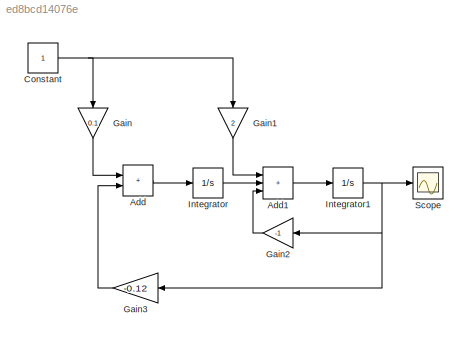
MODEL slx_ed8bcd14076e
KIND model
CONFIG AbsTol = auto
CONFIG EnableMultiTasking = off
CONFIG FixedStep = auto
CONFIG MaxStep = auto
CONFIG MinStep = auto
CONFIG RelTol = 1e-3
CONFIG SampleTimeConstraint = Unconstrained
CONFIG SolverName = VariableStepAuto
CONFIG StartTime = 0.0
CONFIG StopTime = 60
BLOCK [Sum] Add
  IconShape = rectangular
BLOCK [Sum] Add1
  IconShape = rectangular
  Inputs = +++
BLOCK [Constant] Constant
BLOCK [Gain] Gain
  Gain = 0.1
  NameLocation = left
BLOCK [Gain] Gain1
  Gain = 2
  NameLocation = left
BLOCK [Gain] Gain2
  Gain = -1
BLOCK [Gain] Gain3
  Gain = -0.12
BLOCK [Integrator] Integrator
BLOCK [Integrator] Integrator1
BLOCK [Scope] Scope
  Floating = off
  NumInputPorts = 1
  ScopeSpecificationString = Simulink.scopes.TimeScopeBlockCfg('CurrentConfiguration', extmgr.ConfigurationSet(extmgr.Configuration('Core','General UI',true),extmgr.Configuration('Core','Source UI',true),extmgr.Configuration('Sources','WiredSimulink',true),extmgr.Configuration('Visuals','Time Domain',true,'SerializedDisplays',{struct('MinYLimReal','-0.22583','MaxYLimReal','2.03247','YLabelReal','','MinYLimMag','0.00000','MaxY...<+1420ch>
LINE Add1:1 -> Integrator1:1
LINE Add:1 -> Integrator:1
NET Constant:1 -> Gain1:1, Gain:1
LINE Gain1:1 -> Add1:1
LINE Gain2:1 -> Add1:3
LINE Gain3:1 -> Add:2
LINE Gain:1 -> Add:1
NET Integrator1:1 -> Gain2:1, Gain3:1, Scope:1
LINE Integrator:1 -> Add1:2
note: NET lines group one-source signal fan-out (src -> all destinations, sorted); 1:1 wires keep LINE
